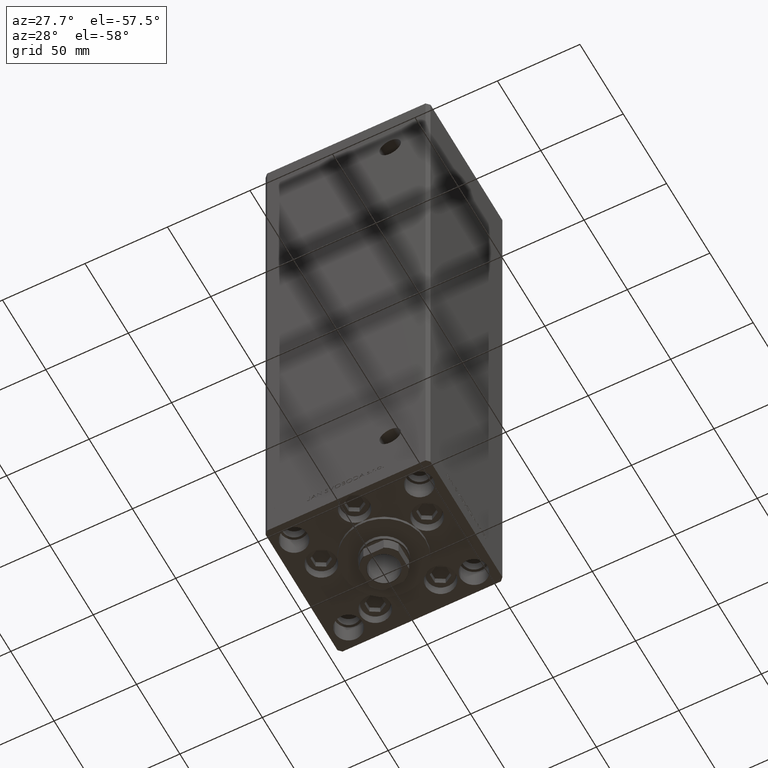
[diagram: clean part render]
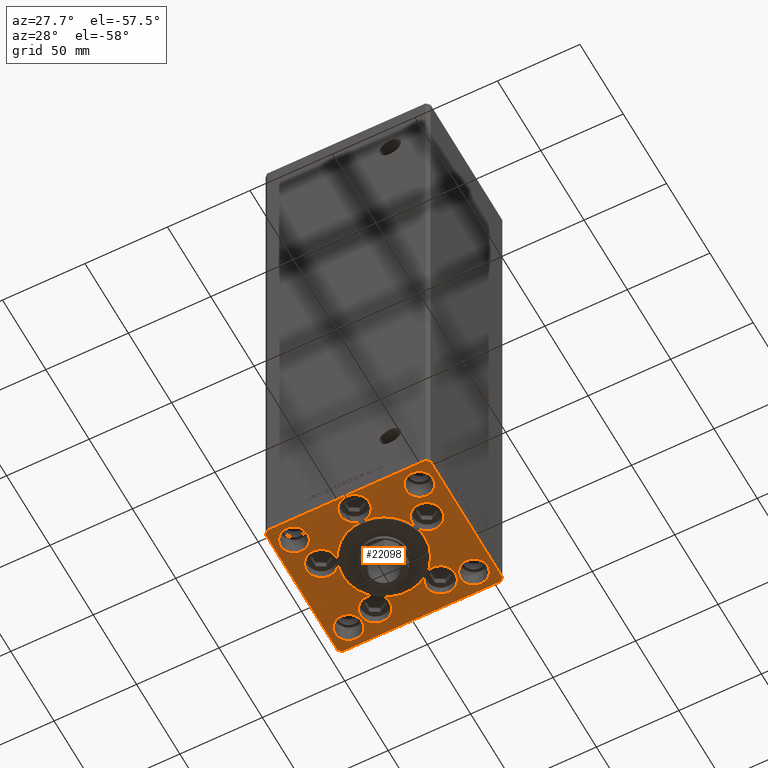
[diagram: same view with one face highlighted and labeled with its STEP entity id]
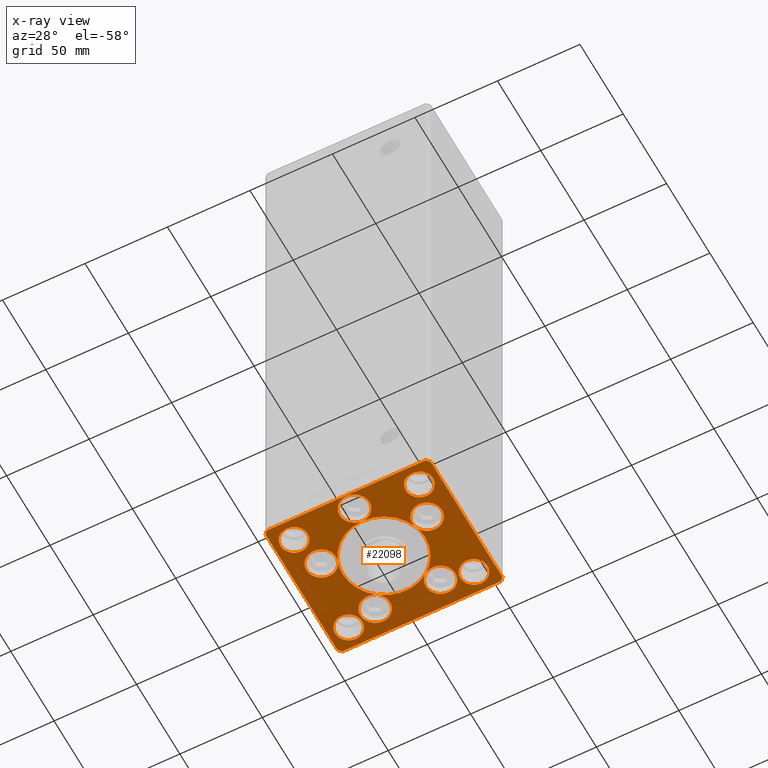
[diagram: x-ray of the same camera — body ghosted, the highlighted face saturated]
A machine part, auxiliary view. The second image highlights one B-rep face of the part: STEP entity #22098.
The next image is the same camera in x-ray: the body ghosted, the highlighted face saturated — about 0% of this face is hidden behind the body in this view.
In plain terms, the highlighted planar face has unit normal (0, 0, -1).
Its self-contained STEP definition (entity closure, byte-faithful):
#32 = ORIENTED_EDGE ( 'NONE', *, *, #29506, .F. ) ;
#40 = VERTEX_POINT ( 'NONE', #28462 ) ;
#57 = CIRCLE ( 'NONE', #28374, 25.00000000000000000 ) ;
#245 = CIRCLE ( 'NONE', #13194, 8.250000000000000000 ) ;
#295 = ORIENTED_EDGE ( 'NONE', *, *, #17762, .F. ) ;
#544 = CIRCLE ( 'NONE', #28860, 9.000000000000001776 ) ;
#687 = CARTESIAN_POINT ( 'NONE',  ( 32.05550741379015989, -11.33333333333332860, 0.000000000000000000 ) ) ;
#786 = EDGE_LOOP ( 'NONE', ( #21252, #42189 ) ) ;
#800 = VERTEX_POINT ( 'NONE', #18604 ) ;
#969 = CARTESIAN_POINT ( 'NONE',  ( 29.74999999999999645, 31.50000000000000000, 0.000000000000000000 ) ) ;
#1328 = DIRECTION ( 'NONE',  ( 0.000000000000000000, 0.000000000000000000, 1.000000000000000000 ) ) ;
#1431 = AXIS2_PLACEMENT_3D ( 'NONE', #687, #16142, #23986 ) ;
#1602 = DIRECTION ( 'NONE',  ( 1.000000000000000000, 0.000000000000000000, 0.000000000000000000 ) ) ;
#1936 = ORIENTED_EDGE ( 'NONE', *, *, #6224, .T. ) ;
#1988 = ORIENTED_EDGE ( 'NONE', *, *, #12278, .F. ) ;
#2027 = DIRECTION ( 'NONE',  ( 1.000000000000000000, 0.000000000000000000, 0.000000000000000000 ) ) ;
#2198 = CARTESIAN_POINT ( 'NONE',  ( -19.82068048781374969, 27.62499999999998934, 0.000000000000000000 ) ) ;
#2227 = VERTEX_POINT ( 'NONE', #42222 ) ;
#2251 = CIRCLE ( 'NONE', #24076, 9.000000000000001776 ) ;
#2256 = EDGE_CURVE ( 'NONE', #16678, #18467, #9167, .T. ) ;
#2451 = DIRECTION ( 'NONE',  ( 1.000000000000000000, 0.000000000000000000, 0.000000000000000000 ) ) ;
#2730 = ORIENTED_EDGE ( 'NONE', *, *, #37692, .F. ) ;
#2842 = EDGE_LOOP ( 'NONE', ( #7783, #1936, #13102, #44778, #41706, #39982, #19967, #37967 ) ) ;
#2931 = DIRECTION ( 'NONE',  ( 0.000000000000000000, 0.000000000000000000, 1.000000000000000000 ) ) ;
#2964 = CIRCLE ( 'NONE', #4605, 25.00000000000000000 ) ;
#3307 = DIRECTION ( 'NONE',  ( 1.000000000000000000, 0.000000000000000000, 0.000000000000000000 ) ) ;
#3710 = FACE_OUTER_BOUND ( 'NONE', #2842, .T. ) ;
#3776 = CARTESIAN_POINT ( 'NONE',  ( 47.99999999999999289, 43.50000000000000000, 0.000000000000000000 ) ) ;
#4009 = DIRECTION ( 'NONE',  ( 1.000000000000000000, 0.000000000000000000, 0.000000000000000000 ) ) ;
#4017 = DIRECTION ( 'NONE',  ( 0.000000000000000000, 0.000000000000000000, 1.000000000000000000 ) ) ;
#4509 = DIRECTION ( 'NONE',  ( -0.7071067811865512365, 0.7071067811865439090, 0.000000000000000000 ) ) ;
#4577 = CARTESIAN_POINT ( 'NONE',  ( -29.75000000000000000, 31.50000000000000000, 0.000000000000000000 ) ) ;
#4605 = AXIS2_PLACEMENT_3D ( 'NONE', #40942, #33348, #2451 ) ;
#5019 = LINE ( 'NONE', #20458, #9588 ) ;
#5330 = CARTESIAN_POINT ( 'NONE',  ( 23.05550741379015633, -11.33333333333332682, 0.000000000000000000 ) ) ;
#5408 = LINE ( 'NONE', #24389, #44199 ) ;
#5410 = DIRECTION ( 'NONE',  ( 0.000000000000000000, 0.000000000000000000, 1.000000000000000000 ) ) ;
#5508 = LINE ( 'NONE', #44487, #12063 ) ;
#5802 = VERTEX_POINT ( 'NONE', #8521 ) ;
#6090 = DIRECTION ( 'NONE',  ( 0.000000000000000000, 0.000000000000000000, 1.000000000000000000 ) ) ;
#6168 = VERTEX_POINT ( 'NONE', #22295 ) ;
#6172 = ORIENTED_EDGE ( 'NONE', *, *, #25202, .F. ) ;
#6224 = EDGE_CURVE ( 'NONE', #40, #6168, #37510, .T. ) ;
#6249 = CIRCLE ( 'NONE', #36956, 25.00000000000000000 ) ;
#6325 = DIRECTION ( 'NONE',  ( 0.000000000000000000, 0.000000000000000000, 1.000000000000000000 ) ) ;
#6353 = ORIENTED_EDGE ( 'NONE', *, *, #45801, .F. ) ;
#6474 = ORIENTED_EDGE ( 'NONE', *, *, #9377, .F. ) ;
#6969 = EDGE_CURVE ( 'NONE', #45736, #43594, #5408, .T. ) ;
#7296 = DIRECTION ( 'NONE',  ( 1.000000000000000000, 0.000000000000000000, 0.000000000000000000 ) ) ;
#7306 = DIRECTION ( 'NONE',  ( 0.000000000000000000, 0.000000000000000000, 1.000000000000000000 ) ) ;
#7327 = CARTESIAN_POINT ( 'NONE',  ( -38.00000000000000711, -31.50000000000000711, 0.000000000000000000 ) ) ;
#7352 = EDGE_CURVE ( 'NONE', #18193, #43472, #544, .T. ) ;
#7364 = EDGE_CURVE ( 'NONE', #12969, #16678, #17504, .T. ) ;
#7709 = EDGE_CURVE ( 'NONE', #43472, #30786, #14288, .T. ) ;
#7727 = ORIENTED_EDGE ( 'NONE', *, *, #12849, .F. ) ;
#7783 = ORIENTED_EDGE ( 'NONE', *, *, #41685, .T. ) ;
#8282 = EDGE_CURVE ( 'NONE', #30786, #46727, #2964, .T. ) ;
#8346 = CIRCLE ( 'NONE', #43085, 9.000000000000000000 ) ;
#8459 = DIRECTION ( 'NONE',  ( 0.000000000000000000, 0.000000000000000000, 1.000000000000000000 ) ) ;
#8500 = DIRECTION ( 'NONE',  ( 0.000000000000000000, 0.000000000000000000, 1.000000000000000000 ) ) ;
#8521 = CARTESIAN_POINT ( 'NONE',  ( 50.00000000000000000, -41.49999999999992895, 0.000000000000000000 ) ) ;
#9167 = CIRCLE ( 'NONE', #16409, 9.000000000000000000 ) ;
#9377 = EDGE_CURVE ( 'NONE', #18342, #13456, #6249, .T. ) ;
#9588 = VECTOR ( 'NONE', #4509, 999.9999999999998863 ) ;
#9644 = CARTESIAN_POINT ( 'NONE',  ( 0.000000000000000000, -6.938893903907228378E-15, 0.000000000000000000 ) ) ;
#9801 = AXIS2_PLACEMENT_3D ( 'NONE', #12369, #11618, #31574 ) ;
#10036 = DIRECTION ( 'NONE',  ( -1.000000000000000000, -2.891205793294678326E-16, 0.000000000000000000 ) ) ;
#10058 = EDGE_CURVE ( 'NONE', #43472, #16625, #43463, .T. ) ;
#10204 = CARTESIAN_POINT ( 'NONE',  ( 9.000000000000000000, -34.00000000000000000, 0.000000000000000000 ) ) ;
#10436 = AXIS2_PLACEMENT_3D ( 'NONE', #34449, #27103, #42807 ) ;
#10470 = CIRCLE ( 'NONE', #26595, 25.00000000000000000 ) ;
#10774 = DIRECTION ( 'NONE',  ( 1.000000000000000000, 0.000000000000000000, 0.000000000000000000 ) ) ;
#11075 = CARTESIAN_POINT ( 'NONE',  ( 38.00000000000000711, -31.50000000000000711, 0.000000000000000000 ) ) ;
#11219 = AXIS2_PLACEMENT_3D ( 'NONE', #24826, #6090, #2027 ) ;
#11229 = CIRCLE ( 'NONE', #32218, 9.000000000000000000 ) ;
#11407 = CARTESIAN_POINT ( 'NONE',  ( -25.00000000000000000, -6.938893903907228378E-15, 0.000000000000000000 ) ) ;
#11586 = CARTESIAN_POINT ( 'NONE',  ( 50.00000000000000000, 41.50000000000000711, 0.000000000000000000 ) ) ;
#11618 = DIRECTION ( 'NONE',  ( 0.000000000000000000, 0.000000000000000000, 1.000000000000000000 ) ) ;
#11809 = VECTOR ( 'NONE', #45094, 1000.000000000000000 ) ;
#11821 = EDGE_CURVE ( 'NONE', #28061, #41150, #19263, .T. ) ;
#11938 = EDGE_CURVE ( 'NONE', #18467, #12969, #11229, .T. ) ;
#12063 = VECTOR ( 'NONE', #20933, 1000.000000000000000 ) ;
#12148 = ORIENTED_EDGE ( 'NONE', *, *, #11938, .F. ) ;
#12183 = CARTESIAN_POINT ( 'NONE',  ( 46.25000000000000000, 31.50000000000000000, 0.000000000000000000 ) ) ;
#12243 = CIRCLE ( 'NONE', #46182, 8.249999999999992895 ) ;
#12278 = EDGE_CURVE ( 'NONE', #16625, #18193, #13667, .T. ) ;
#12369 = CARTESIAN_POINT ( 'NONE',  ( 19.82068048781374969, 27.62499999999998934, 0.000000000000000000 ) ) ;
#12758 = CARTESIAN_POINT ( 'NONE',  ( -38.00000000000000711, -31.50000000000000711, 0.000000000000000000 ) ) ;
#12849 = EDGE_CURVE ( 'NONE', #800, #18342, #21772, .T. ) ;
#12969 = VERTEX_POINT ( 'NONE', #40021 ) ;
#13102 = ORIENTED_EDGE ( 'NONE', *, *, #22249, .T. ) ;
#13188 = AXIS2_PLACEMENT_3D ( 'NONE', #32085, #44503, #20953 ) ;
#13194 = AXIS2_PLACEMENT_3D ( 'NONE', #12758, #16297, #43385 ) ;
#13456 = VERTEX_POINT ( 'NONE', #29412 ) ;
#13535 = VERTEX_POINT ( 'NONE', #4577 ) ;
#13667 = CIRCLE ( 'NONE', #17697, 9.000000000000001776 ) ;
#13921 = DIRECTION ( 'NONE',  ( 1.000000000000000000, 0.000000000000000000, 0.000000000000000000 ) ) ;
#14222 = CARTESIAN_POINT ( 'NONE',  ( -48.00000000000000711, -43.50000000000002842, 0.000000000000000000 ) ) ;
#14288 = CIRCLE ( 'NONE', #43393, 25.00000000000000000 ) ;
#14382 = DIRECTION ( 'NONE',  ( 0.000000000000000000, 0.000000000000000000, 1.000000000000000000 ) ) ;
#14433 = VERTEX_POINT ( 'NONE', #42117 ) ;
#14496 = CARTESIAN_POINT ( 'NONE',  ( -23.57022603955158502, -8.333333333333332149, 0.000000000000000000 ) ) ;
#14937 = CARTESIAN_POINT ( 'NONE',  ( -46.25000000000000711, -31.50000000000000711, 0.000000000000000000 ) ) ;
#14953 = DIRECTION ( 'NONE',  ( 0.000000000000000000, 0.000000000000000000, 1.000000000000000000 ) ) ;
#15110 = LINE ( 'NONE', #45987, #38093 ) ;
#15180 = VERTEX_POINT ( 'NONE', #19033 ) ;
#15200 = DIRECTION ( 'NONE',  ( 1.000000000000000000, 0.000000000000000000, 0.000000000000000000 ) ) ;
#15336 = CIRCLE ( 'NONE', #43640, 8.250000000000000000 ) ;
#15366 = FACE_BOUND ( 'NONE', #26642, .T. ) ;
#15667 = DIRECTION ( 'NONE',  ( 0.000000000000000000, 0.000000000000000000, 1.000000000000000000 ) ) ;
#16142 = DIRECTION ( 'NONE',  ( 0.000000000000000000, 0.000000000000000000, 1.000000000000000000 ) ) ;
#16158 = DIRECTION ( 'NONE',  ( 1.000000000000000000, 0.000000000000000000, 0.000000000000000000 ) ) ;
#16297 = DIRECTION ( 'NONE',  ( 0.000000000000000000, 0.000000000000000000, 1.000000000000000000 ) ) ;
#16409 = AXIS2_PLACEMENT_3D ( 'NONE', #38425, #7306, #46268 ) ;
#16419 = DIRECTION ( 'NONE',  ( 1.000000000000000000, 0.000000000000000000, 0.000000000000000000 ) ) ;
#16435 = EDGE_CURVE ( 'NONE', #14433, #46727, #37926, .T. ) ;
#16505 = ORIENTED_EDGE ( 'NONE', *, *, #36507, .F. ) ;
#16625 = VERTEX_POINT ( 'NONE', #5330 ) ;
#16678 = VERTEX_POINT ( 'NONE', #16701 ) ;
#16701 = CARTESIAN_POINT ( 'NONE',  ( -28.82068048781374969, 27.62499999999998934, 0.000000000000000000 ) ) ;
#16807 = VERTEX_POINT ( 'NONE', #34375 ) ;
#17069 = CARTESIAN_POINT ( 'NONE',  ( -29.75000000000000711, -31.50000000000000711, 0.000000000000000000 ) ) ;
#17074 = AXIS2_PLACEMENT_3D ( 'NONE', #31042, #27004, #35104 ) ;
#17504 = CIRCLE ( 'NONE', #32910, 9.000000000000000000 ) ;
#17513 = EDGE_CURVE ( 'NONE', #46727, #18467, #10470, .T. ) ;
#17666 = CARTESIAN_POINT ( 'NONE',  ( 23.57022603955158502, -8.333333333333332149, 0.000000000000000000 ) ) ;
#17697 = AXIS2_PLACEMENT_3D ( 'NONE', #36032, #19829, #27424 ) ;
#17734 = DIRECTION ( 'NONE',  ( 0.000000000000000000, 1.000000000000000000, 0.000000000000000000 ) ) ;
#17762 = EDGE_CURVE ( 'NONE', #28934, #18342, #49260, .T. ) ;
#18193 = VERTEX_POINT ( 'NONE', #32757 ) ;
#18284 = ORIENTED_EDGE ( 'NONE', *, *, #7364, .F. ) ;
#18342 = VERTEX_POINT ( 'NONE', #14496 ) ;
#18447 = ORIENTED_EDGE ( 'NONE', *, *, #7352, .F. ) ;
#18467 = VERTEX_POINT ( 'NONE', #32635 ) ;
#18473 = CARTESIAN_POINT ( 'NONE',  ( 14.57402977045128623, 20.31249999999998579, 0.000000000000000000 ) ) ;
#18604 = CARTESIAN_POINT ( 'NONE',  ( -23.05550741379015633, -11.33333333333332860, 0.000000000000000000 ) ) ;
#18958 = CARTESIAN_POINT ( 'NONE',  ( -41.05550741379015989, -11.33333333333332682, 0.000000000000000000 ) ) ;
#19033 = CARTESIAN_POINT ( 'NONE',  ( 29.75000000000001066, -31.50000000000000711, 0.000000000000000000 ) ) ;
#19143 = FACE_BOUND ( 'NONE', #786, .T. ) ;
#19263 = CIRCLE ( 'NONE', #35473, 8.250000000000000000 ) ;
#19829 = DIRECTION ( 'NONE',  ( 0.000000000000000000, 0.000000000000000000, 1.000000000000000000 ) ) ;
#19953 = DIRECTION ( 'NONE',  ( 1.000000000000000000, 0.000000000000000000, 0.000000000000000000 ) ) ;
#19967 = ORIENTED_EDGE ( 'NONE', *, *, #6969, .T. ) ;
#20213 = CARTESIAN_POINT ( 'NONE',  ( -32.05550741379015989, -11.33333333333332860, 0.000000000000000000 ) ) ;
#20335 = CARTESIAN_POINT ( 'NONE',  ( 0.000000000000000000, -34.00000000000000000, 0.000000000000000000 ) ) ;
#20359 = ORIENTED_EDGE ( 'NONE', *, *, #10058, .F. ) ;
#20458 = CARTESIAN_POINT ( 'NONE',  ( 50.00000000000000000, 41.50000000000000711, 0.000000000000000000 ) ) ;
#20549 = EDGE_CURVE ( 'NONE', #16807, #14433, #45318, .T. ) ;
#20677 = DIRECTION ( 'NONE',  ( 1.000000000000000000, 0.000000000000000000, 0.000000000000000000 ) ) ;
#20853 = VERTEX_POINT ( 'NONE', #44402 ) ;
#20933 = DIRECTION ( 'NONE',  ( 0.7071067811865487940, -0.7071067811865463515, 0.000000000000000000 ) ) ;
#20953 = DIRECTION ( 'NONE',  ( 1.000000000000000000, 0.000000000000000000, 0.000000000000000000 ) ) ;
#21252 = ORIENTED_EDGE ( 'NONE', *, *, #42788, .F. ) ;
#21481 = VERTEX_POINT ( 'NONE', #48485 ) ;
#21686 = LINE ( 'NONE', #22172, #35763 ) ;
#21754 = DIRECTION ( 'NONE',  ( 1.000000000000000000, 0.000000000000000000, 0.000000000000000000 ) ) ;
#21772 = CIRCLE ( 'NONE', #10436, 9.000000000000001776 ) ;
#22098 = ADVANCED_FACE ( 'NONE', ( #15366, #19143, #22953, #26498, #38649, #3710 ), #33419, .T. ) ;
#22172 = CARTESIAN_POINT ( 'NONE',  ( -50.00000000000000711, 41.49999999999999289, 0.000000000000000000 ) ) ;
#22197 = EDGE_CURVE ( 'NONE', #15180, #20853, #12243, .T. ) ;
#22249 = EDGE_CURVE ( 'NONE', #6168, #5802, #15110, .T. ) ;
#22295 = CARTESIAN_POINT ( 'NONE',  ( 48.00000000000000711, -43.49999999999992184, 0.000000000000000000 ) ) ;
#22488 = DIRECTION ( 'NONE',  ( 0.000000000000000000, 0.000000000000000000, 1.000000000000000000 ) ) ;
#22713 = CARTESIAN_POINT ( 'NONE',  ( 19.82068048781374969, 27.62499999999998934, 0.000000000000000000 ) ) ;
#22796 = CARTESIAN_POINT ( 'NONE',  ( 0.000000000000000000, -6.938893903907228378E-15, 0.000000000000000000 ) ) ;
#22842 = ORIENTED_EDGE ( 'NONE', *, *, #7709, .F. ) ;
#22843 = CARTESIAN_POINT ( 'NONE',  ( -50.00000000000000000, -41.50000000000004263, 0.000000000000000000 ) ) ;
#22953 = FACE_BOUND ( 'NONE', #41078, .T. ) ;
#22995 = CARTESIAN_POINT ( 'NONE',  ( 0.000000000000000000, -34.00000000000000000, 0.000000000000000000 ) ) ;
#23242 = CARTESIAN_POINT ( 'NONE',  ( 0.000000000000000000, -6.938893903907228378E-15, 0.000000000000000000 ) ) ;
#23760 = CARTESIAN_POINT ( 'NONE',  ( -19.82068048781374969, 27.62499999999998934, 0.000000000000000000 ) ) ;
#23882 = DIRECTION ( 'NONE',  ( 1.000000000000000000, 0.000000000000000000, 0.000000000000000000 ) ) ;
#23884 = EDGE_CURVE ( 'NONE', #43594, #37170, #21686, .T. ) ;
#23986 = DIRECTION ( 'NONE',  ( 1.000000000000000000, 0.000000000000000000, 0.000000000000000000 ) ) ;
#24076 = AXIS2_PLACEMENT_3D ( 'NONE', #31764, #8500, #42913 ) ;
#24389 = CARTESIAN_POINT ( 'NONE',  ( -48.00000000000000000, 43.49999999999997158, 0.000000000000000000 ) ) ;
#24647 = AXIS2_PLACEMENT_3D ( 'NONE', #20213, #4017, #16419 ) ;
#24657 = VERTEX_POINT ( 'NONE', #12183 ) ;
#24826 = CARTESIAN_POINT ( 'NONE',  ( 38.00000000000000711, -31.50000000000000711, 0.000000000000000000 ) ) ;
#25082 = EDGE_LOOP ( 'NONE', ( #35672, #30175 ) ) ;
#25132 = AXIS2_PLACEMENT_3D ( 'NONE', #22713, #14382, #26268 ) ;
#25202 = EDGE_CURVE ( 'NONE', #2227, #26762, #32540, .T. ) ;
#25278 = ORIENTED_EDGE ( 'NONE', *, *, #34080, .F. ) ;
#25282 = VECTOR ( 'NONE', #17734, 1000.000000000000000 ) ;
#25500 = CARTESIAN_POINT ( 'NONE',  ( 32.05550741379015989, -11.33333333333332860, 0.000000000000000000 ) ) ;
#25760 = VERTEX_POINT ( 'NONE', #969 ) ;
#25856 = DIRECTION ( 'NONE',  ( 0.000000000000000000, 0.000000000000000000, 1.000000000000000000 ) ) ;
#25936 = CARTESIAN_POINT ( 'NONE',  ( 47.99999999999999289, 43.50000000000000000, 0.000000000000000000 ) ) ;
#25944 = CIRCLE ( 'NONE', #25132, 8.999999999999998224 ) ;
#26268 = DIRECTION ( 'NONE',  ( 1.000000000000000000, 0.000000000000000000, 0.000000000000000000 ) ) ;
#26455 = AXIS2_PLACEMENT_3D ( 'NONE', #39066, #1328, #27907 ) ;
#26498 = FACE_BOUND ( 'NONE', #42559, .T. ) ;
#26595 = AXIS2_PLACEMENT_3D ( 'NONE', #40994, #6325, #21754 ) ;
#26639 = EDGE_CURVE ( 'NONE', #41150, #28061, #245, .T. ) ;
#26642 = EDGE_LOOP ( 'NONE', ( #27642, #29856, #32864, #6353, #43142, #22842, #18447, #1988, #20359, #42260, #49937, #6172, #32, #6474, #7727, #45123, #2730, #295, #46130, #27303, #18284, #12148 ) ) ;
#26762 = VERTEX_POINT ( 'NONE', #10204 ) ;
#27004 = DIRECTION ( 'NONE',  ( -0.000000000000000000, 0.000000000000000000, 1.000000000000000000 ) ) ;
#27103 = DIRECTION ( 'NONE',  ( 0.000000000000000000, 0.000000000000000000, 1.000000000000000000 ) ) ;
#27303 = ORIENTED_EDGE ( 'NONE', *, *, #2256, .F. ) ;
#27424 = DIRECTION ( 'NONE',  ( 1.000000000000000000, 0.000000000000000000, 0.000000000000000000 ) ) ;
#27642 = ORIENTED_EDGE ( 'NONE', *, *, #17513, .F. ) ;
#27798 = DIRECTION ( 'NONE',  ( 1.000000000000000000, 0.000000000000000000, 0.000000000000000000 ) ) ;
#27907 = DIRECTION ( 'NONE',  ( 1.000000000000000000, 0.000000000000000000, 0.000000000000000000 ) ) ;
#27986 = EDGE_CURVE ( 'NONE', #5802, #35801, #40780, .T. ) ;
#28061 = VERTEX_POINT ( 'NONE', #14937 ) ;
#28374 = AXIS2_PLACEMENT_3D ( 'NONE', #39926, #28531, #20677 ) ;
#28437 = DIRECTION ( 'NONE',  ( -0.7071067811865536790, -0.7071067811865414665, 0.000000000000000000 ) ) ;
#28462 = CARTESIAN_POINT ( 'NONE',  ( -48.00000000000000711, -43.50000000000002842, 0.000000000000000000 ) ) ;
#28531 = DIRECTION ( 'NONE',  ( 0.000000000000000000, 0.000000000000000000, 1.000000000000000000 ) ) ;
#28860 = AXIS2_PLACEMENT_3D ( 'NONE', #25500, #2931, #48280 ) ;
#28883 = CIRCLE ( 'NONE', #26455, 8.250000000000000000 ) ;
#28934 = VERTEX_POINT ( 'NONE', #11407 ) ;
#29292 = DIRECTION ( 'NONE',  ( 1.000000000000000000, 0.000000000000000000, 0.000000000000000000 ) ) ;
#29316 = CIRCLE ( 'NONE', #30122, 8.250000000000000000 ) ;
#29412 = CARTESIAN_POINT ( 'NONE',  ( 0.000000000000000000, -25.00000000000000000, 0.000000000000000000 ) ) ;
#29506 = EDGE_CURVE ( 'NONE', #13456, #2227, #8346, .T. ) ;
#29564 = EDGE_CURVE ( 'NONE', #26762, #13456, #43905, .T. ) ;
#29856 = ORIENTED_EDGE ( 'NONE', *, *, #16435, .F. ) ;
#29858 = CARTESIAN_POINT ( 'NONE',  ( 50.00000000000000000, -41.49999999999992895, 0.000000000000000000 ) ) ;
#30122 = AXIS2_PLACEMENT_3D ( 'NONE', #34529, #38087, #10774 ) ;
#30175 = ORIENTED_EDGE ( 'NONE', *, *, #22197, .F. ) ;
#30332 = DIRECTION ( 'NONE',  ( 1.000000000000000000, 0.000000000000000000, 0.000000000000000000 ) ) ;
#30343 = EDGE_CURVE ( 'NONE', #43340, #800, #40007, .T. ) ;
#30599 = CIRCLE ( 'NONE', #11219, 8.249999999999992895 ) ;
#30666 = AXIS2_PLACEMENT_3D ( 'NONE', #9644, #48828, #13921 ) ;
#30786 = VERTEX_POINT ( 'NONE', #32295 ) ;
#30787 = DIRECTION ( 'NONE',  ( 1.000000000000000000, 0.000000000000000000, 0.000000000000000000 ) ) ;
#30831 = DIRECTION ( 'NONE',  ( 0.000000000000000000, 0.000000000000000000, 1.000000000000000000 ) ) ;
#30848 = ORIENTED_EDGE ( 'NONE', *, *, #26639, .F. ) ;
#31040 = CARTESIAN_POINT ( 'NONE',  ( -50.00000000000000711, 41.49999999999999289, 0.000000000000000000 ) ) ;
#31042 = CARTESIAN_POINT ( 'NONE',  ( 0.000000000000000000, 0.000000000000000000, 0.000000000000000000 ) ) ;
#31574 = DIRECTION ( 'NONE',  ( 1.000000000000000000, 0.000000000000000000, 0.000000000000000000 ) ) ;
#31638 = EDGE_CURVE ( 'NONE', #49541, #45736, #40889, .T. ) ;
#31764 = CARTESIAN_POINT ( 'NONE',  ( -32.05550741379015989, -11.33333333333332860, 0.000000000000000000 ) ) ;
#32085 = CARTESIAN_POINT ( 'NONE',  ( 0.000000000000000000, -34.00000000000000000, 0.000000000000000000 ) ) ;
#32218 = AXIS2_PLACEMENT_3D ( 'NONE', #23760, #35149, #19953 ) ;
#32252 = AXIS2_PLACEMENT_3D ( 'NONE', #49629, #14953, #15200 ) ;
#32295 = CARTESIAN_POINT ( 'NONE',  ( 25.00000000000000000, -3.877276906038844941E-15, 0.000000000000000000 ) ) ;
#32483 = CARTESIAN_POINT ( 'NONE',  ( 0.000000000000000000, -6.938893903907228378E-15, 0.000000000000000000 ) ) ;
#32540 = CIRCLE ( 'NONE', #34154, 9.000000000000000000 ) ;
#32635 = CARTESIAN_POINT ( 'NONE',  ( -14.57402977045128978, 20.31249999999999289, 0.000000000000000000 ) ) ;
#32639 = CARTESIAN_POINT ( 'NONE',  ( -48.00000000000000000, 43.49999999999997158, 0.000000000000000000 ) ) ;
#32757 = CARTESIAN_POINT ( 'NONE',  ( 41.05550741379015989, -11.33333333333332860, 0.000000000000000000 ) ) ;
#32864 = ORIENTED_EDGE ( 'NONE', *, *, #20549, .F. ) ;
#32872 = VECTOR ( 'NONE', #10036, 1000.000000000000000 ) ;
#32910 = AXIS2_PLACEMENT_3D ( 'NONE', #2198, #33826, #29292 ) ;
#33348 = DIRECTION ( 'NONE',  ( 0.000000000000000000, 0.000000000000000000, 1.000000000000000000 ) ) ;
#33419 = PLANE ( 'NONE',  #17074 ) ;
#33826 = DIRECTION ( 'NONE',  ( 0.000000000000000000, 0.000000000000000000, 1.000000000000000000 ) ) ;
#34080 = EDGE_CURVE ( 'NONE', #13535, #21481, #28883, .T. ) ;
#34154 = AXIS2_PLACEMENT_3D ( 'NONE', #20335, #8459, #23882 ) ;
#34375 = CARTESIAN_POINT ( 'NONE',  ( 28.82068048781374969, 27.62499999999998934, 0.000000000000000000 ) ) ;
#34449 = CARTESIAN_POINT ( 'NONE',  ( -32.05550741379015989, -11.33333333333332860, 0.000000000000000000 ) ) ;
#34529 = CARTESIAN_POINT ( 'NONE',  ( 38.00000000000000000, 31.50000000000000000, 0.000000000000000000 ) ) ;
#35104 = DIRECTION ( 'NONE',  ( 1.000000000000000000, 0.000000000000000000, 0.000000000000000000 ) ) ;
#35149 = DIRECTION ( 'NONE',  ( 0.000000000000000000, 0.000000000000000000, 1.000000000000000000 ) ) ;
#35473 = AXIS2_PLACEMENT_3D ( 'NONE', #7327, #22488, #30332 ) ;
#35672 = ORIENTED_EDGE ( 'NONE', *, *, #40066, .F. ) ;
#35763 = VECTOR ( 'NONE', #40699, 1000.000000000000000 ) ;
#35801 = VERTEX_POINT ( 'NONE', #11586 ) ;
#36032 = CARTESIAN_POINT ( 'NONE',  ( 32.05550741379015989, -11.33333333333332860, 0.000000000000000000 ) ) ;
#36344 = AXIS2_PLACEMENT_3D ( 'NONE', #23242, #15667, #27798 ) ;
#36376 = CIRCLE ( 'NONE', #30666, 25.00000000000000000 ) ;
#36507 = EDGE_CURVE ( 'NONE', #21481, #13535, #49907, .T. ) ;
#36956 = AXIS2_PLACEMENT_3D ( 'NONE', #32483, #5410, #1602 ) ;
#37170 = VERTEX_POINT ( 'NONE', #22843 ) ;
#37510 = LINE ( 'NONE', #14222, #11809 ) ;
#37692 = EDGE_CURVE ( 'NONE', #18342, #43340, #2251, .T. ) ;
#37926 = CIRCLE ( 'NONE', #32252, 8.999999999999998224 ) ;
#37967 = ORIENTED_EDGE ( 'NONE', *, *, #23884, .T. ) ;
#38087 = DIRECTION ( 'NONE',  ( 0.000000000000000000, 0.000000000000000000, 1.000000000000000000 ) ) ;
#38093 = VECTOR ( 'NONE', #42190, 1000.000000000000114 ) ;
#38425 = CARTESIAN_POINT ( 'NONE',  ( -19.82068048781374969, 27.62499999999998934, 0.000000000000000000 ) ) ;
#38649 = FACE_BOUND ( 'NONE', #25082, .T. ) ;
#38693 = DIRECTION ( 'NONE',  ( 0.000000000000000000, 0.000000000000000000, 1.000000000000000000 ) ) ;
#39066 = CARTESIAN_POINT ( 'NONE',  ( -38.00000000000000000, 31.50000000000000000, 0.000000000000000000 ) ) ;
#39129 = EDGE_CURVE ( 'NONE', #35801, #49541, #5019, .T. ) ;
#39926 = CARTESIAN_POINT ( 'NONE',  ( 0.000000000000000000, -6.938893903907228378E-15, 0.000000000000000000 ) ) ;
#39982 = ORIENTED_EDGE ( 'NONE', *, *, #31638, .T. ) ;
#40007 = CIRCLE ( 'NONE', #24647, 9.000000000000001776 ) ;
#40021 = CARTESIAN_POINT ( 'NONE',  ( -10.82068048781375147, 27.62499999999998934, 0.000000000000000000 ) ) ;
#40066 = EDGE_CURVE ( 'NONE', #20853, #15180, #30599, .T. ) ;
#40699 = DIRECTION ( 'NONE',  ( 8.360113137237620037E-17, -1.000000000000000000, 0.000000000000000000 ) ) ;
#40780 = LINE ( 'NONE', #29858, #25282 ) ;
#40889 = LINE ( 'NONE', #25936, #32872 ) ;
#40942 = CARTESIAN_POINT ( 'NONE',  ( 0.000000000000000000, -6.938893903907228378E-15, 0.000000000000000000 ) ) ;
#40994 = CARTESIAN_POINT ( 'NONE',  ( 0.000000000000000000, -6.938893903907228378E-15, 0.000000000000000000 ) ) ;
#41078 = EDGE_LOOP ( 'NONE', ( #25278, #16505 ) ) ;
#41150 = VERTEX_POINT ( 'NONE', #17069 ) ;
#41685 = EDGE_CURVE ( 'NONE', #37170, #40, #5508, .T. ) ;
#41706 = ORIENTED_EDGE ( 'NONE', *, *, #39129, .T. ) ;
#41939 = DIRECTION ( 'NONE',  ( 0.000000000000000000, 0.000000000000000000, 1.000000000000000000 ) ) ;
#41953 = CARTESIAN_POINT ( 'NONE',  ( -38.00000000000000000, 31.50000000000000000, 0.000000000000000000 ) ) ;
#42117 = CARTESIAN_POINT ( 'NONE',  ( 10.82068048781375147, 27.62499999999998934, 0.000000000000000000 ) ) ;
#42189 = ORIENTED_EDGE ( 'NONE', *, *, #50045, .F. ) ;
#42190 = DIRECTION ( 'NONE',  ( 0.7071067811865474617, 0.7071067811865474617, 0.000000000000000000 ) ) ;
#42222 = CARTESIAN_POINT ( 'NONE',  ( -9.000000000000000000, -34.00000000000000000, 0.000000000000000000 ) ) ;
#42260 = ORIENTED_EDGE ( 'NONE', *, *, #46154, .F. ) ;
#42559 = EDGE_LOOP ( 'NONE', ( #30848, #47942 ) ) ;
#42595 = EDGE_CURVE ( 'NONE', #18467, #28934, #36376, .T. ) ;
#42788 = EDGE_CURVE ( 'NONE', #24657, #25760, #15336, .T. ) ;
#42807 = DIRECTION ( 'NONE',  ( 1.000000000000000000, 0.000000000000000000, 0.000000000000000000 ) ) ;
#42913 = DIRECTION ( 'NONE',  ( 1.000000000000000000, 0.000000000000000000, 0.000000000000000000 ) ) ;
#43085 = AXIS2_PLACEMENT_3D ( 'NONE', #22995, #30831, #16158 ) ;
#43142 = ORIENTED_EDGE ( 'NONE', *, *, #8282, .F. ) ;
#43340 = VERTEX_POINT ( 'NONE', #18958 ) ;
#43385 = DIRECTION ( 'NONE',  ( 1.000000000000000000, 0.000000000000000000, 0.000000000000000000 ) ) ;
#43393 = AXIS2_PLACEMENT_3D ( 'NONE', #22796, #25856, #3307 ) ;
#43463 = CIRCLE ( 'NONE', #1431, 9.000000000000001776 ) ;
#43472 = VERTEX_POINT ( 'NONE', #17666 ) ;
#43594 = VERTEX_POINT ( 'NONE', #31040 ) ;
#43640 = AXIS2_PLACEMENT_3D ( 'NONE', #46280, #38693, #4009 ) ;
#43905 = CIRCLE ( 'NONE', #13188, 9.000000000000000000 ) ;
#44199 = VECTOR ( 'NONE', #28437, 1000.000000000000000 ) ;
#44371 = AXIS2_PLACEMENT_3D ( 'NONE', #41953, #49304, #7296 ) ;
#44402 = CARTESIAN_POINT ( 'NONE',  ( 46.25000000000000000, -31.50000000000000711, 0.000000000000000000 ) ) ;
#44487 = CARTESIAN_POINT ( 'NONE',  ( -50.00000000000000000, -41.50000000000004263, 0.000000000000000000 ) ) ;
#44503 = DIRECTION ( 'NONE',  ( 0.000000000000000000, 0.000000000000000000, 1.000000000000000000 ) ) ;
#44778 = ORIENTED_EDGE ( 'NONE', *, *, #27986, .T. ) ;
#45094 = DIRECTION ( 'NONE',  ( 1.000000000000000000, 1.156482317317871331E-15, 0.000000000000000000 ) ) ;
#45123 = ORIENTED_EDGE ( 'NONE', *, *, #30343, .F. ) ;
#45318 = CIRCLE ( 'NONE', #9801, 8.999999999999998224 ) ;
#45736 = VERTEX_POINT ( 'NONE', #32639 ) ;
#45801 = EDGE_CURVE ( 'NONE', #46727, #16807, #25944, .T. ) ;
#45987 = CARTESIAN_POINT ( 'NONE',  ( 48.00000000000000711, -43.49999999999992184, 0.000000000000000000 ) ) ;
#46130 = ORIENTED_EDGE ( 'NONE', *, *, #42595, .F. ) ;
#46154 = EDGE_CURVE ( 'NONE', #13456, #43472, #57, .T. ) ;
#46182 = AXIS2_PLACEMENT_3D ( 'NONE', #11075, #41939, #30787 ) ;
#46268 = DIRECTION ( 'NONE',  ( 1.000000000000000000, 0.000000000000000000, 0.000000000000000000 ) ) ;
#46280 = CARTESIAN_POINT ( 'NONE',  ( 38.00000000000000000, 31.50000000000000000, 0.000000000000000000 ) ) ;
#46727 = VERTEX_POINT ( 'NONE', #18473 ) ;
#47942 = ORIENTED_EDGE ( 'NONE', *, *, #11821, .F. ) ;
#48280 = DIRECTION ( 'NONE',  ( 1.000000000000000000, 0.000000000000000000, 0.000000000000000000 ) ) ;
#48485 = CARTESIAN_POINT ( 'NONE',  ( -46.25000000000000000, 31.50000000000000000, 0.000000000000000000 ) ) ;
#48828 = DIRECTION ( 'NONE',  ( 0.000000000000000000, 0.000000000000000000, 1.000000000000000000 ) ) ;
#49260 = CIRCLE ( 'NONE', #36344, 25.00000000000000000 ) ;
#49304 = DIRECTION ( 'NONE',  ( 0.000000000000000000, 0.000000000000000000, 1.000000000000000000 ) ) ;
#49541 = VERTEX_POINT ( 'NONE', #3776 ) ;
#49629 = CARTESIAN_POINT ( 'NONE',  ( 19.82068048781374969, 27.62499999999998934, 0.000000000000000000 ) ) ;
#49907 = CIRCLE ( 'NONE', #44371, 8.250000000000000000 ) ;
#49937 = ORIENTED_EDGE ( 'NONE', *, *, #29564, .F. ) ;
#50045 = EDGE_CURVE ( 'NONE', #25760, #24657, #29316, .T. ) ;